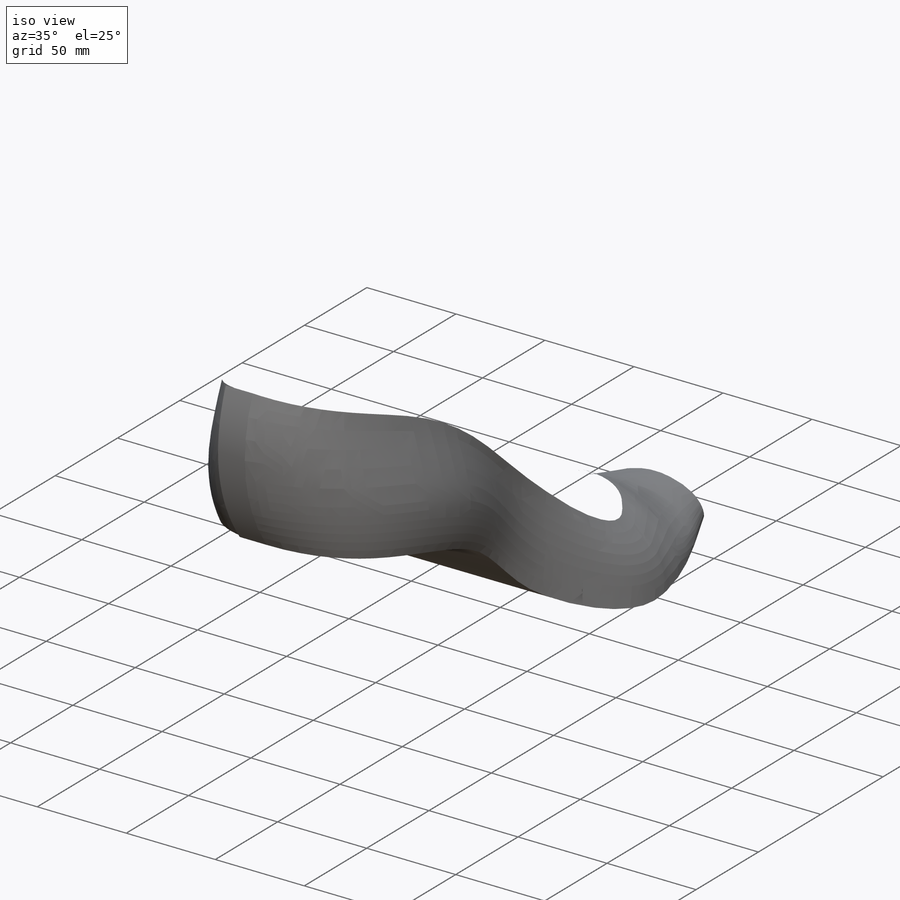
[diagram: iso view]
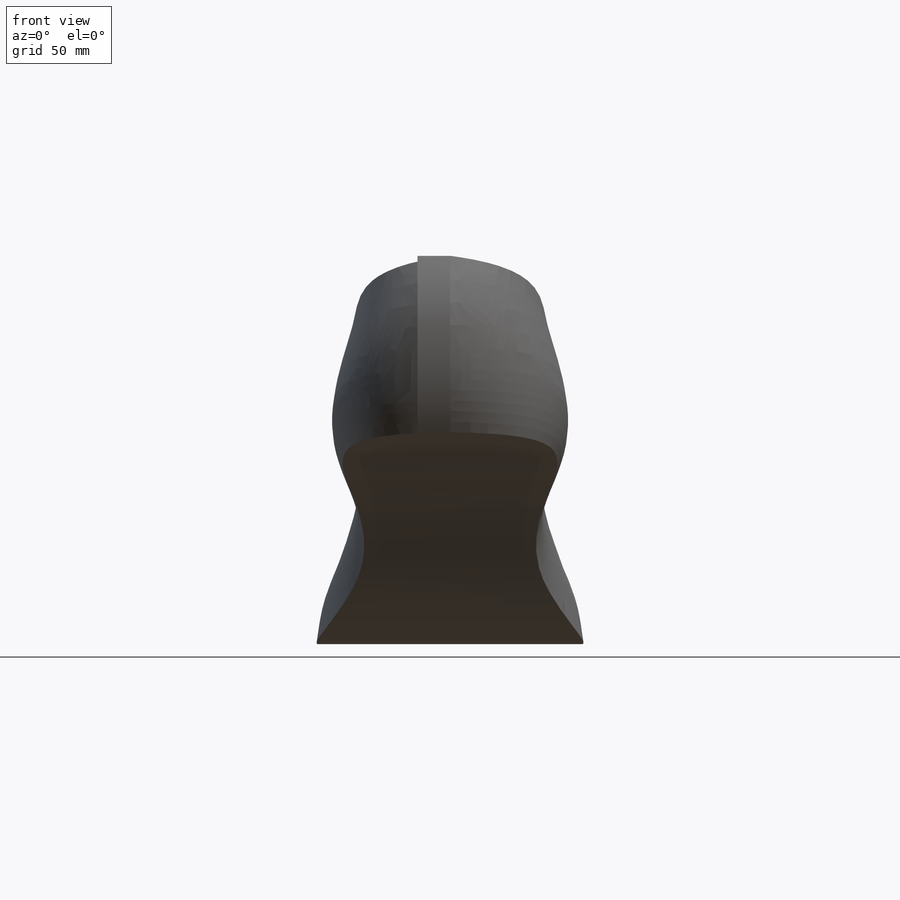
[diagram: front view]
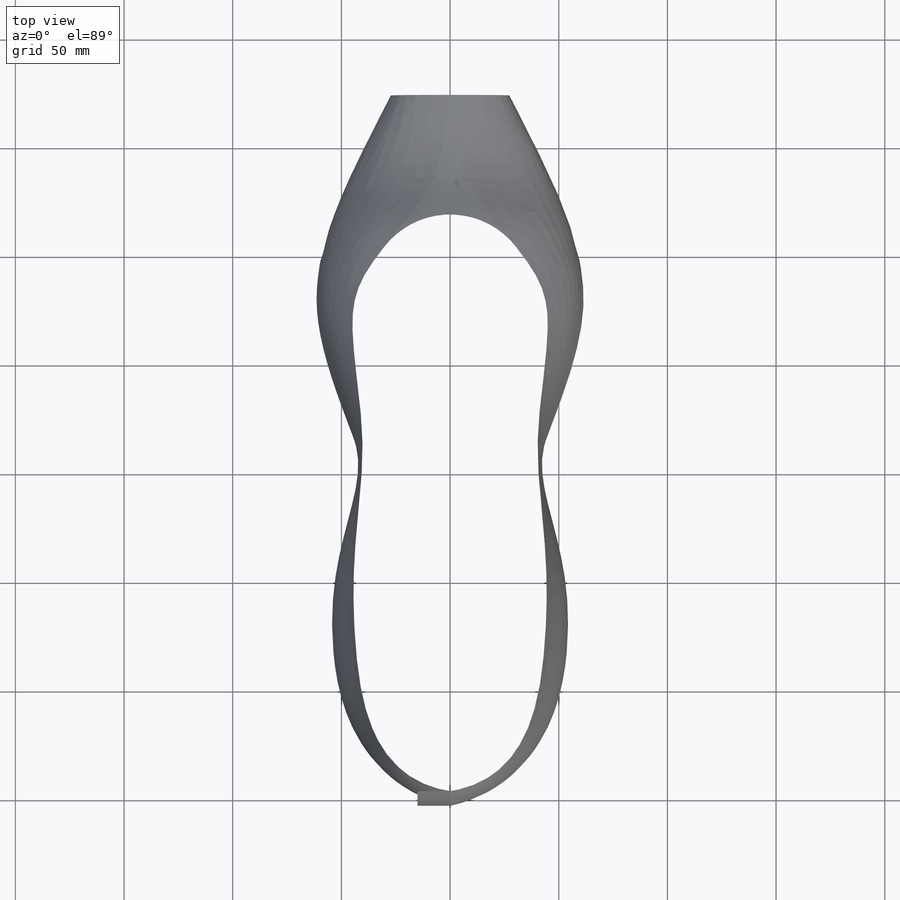
[diagram: top view]
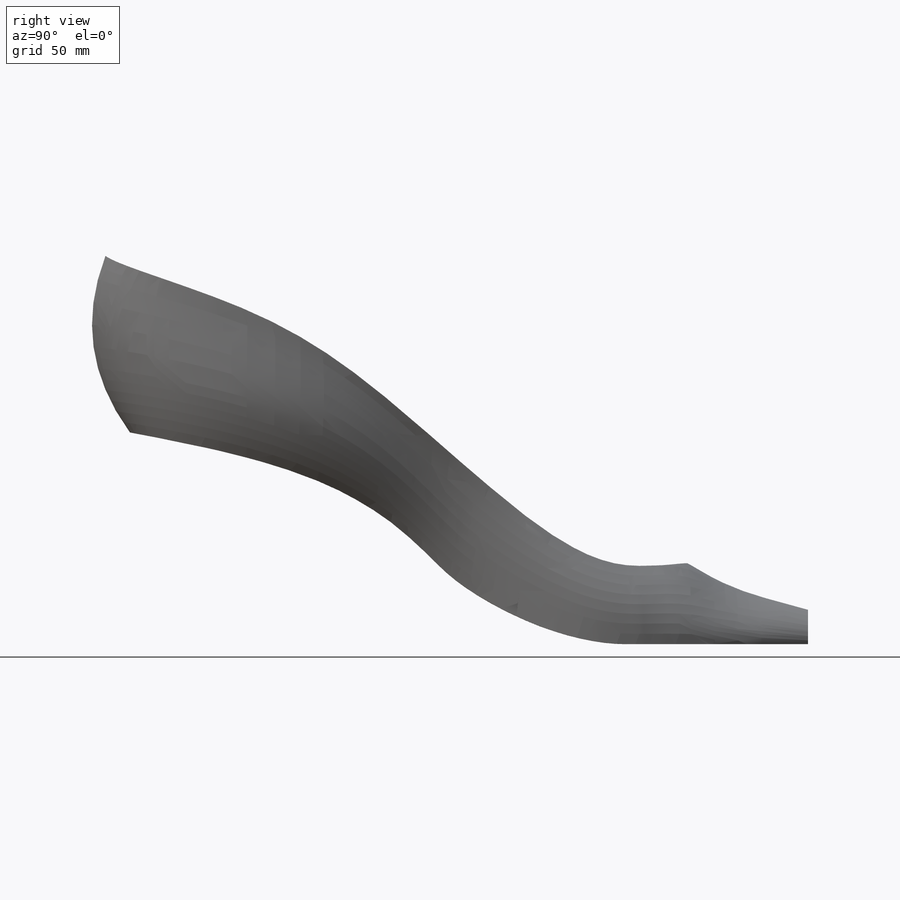
[diagram: right view]
SOLIDWORKS PART (.sldprt)
format: sldprt  version: not decoded by parser v0  size: 2,907,136 bytes
history: native  units: mm
features: sketch x12, surface_op x2, material x1, mirror x1, plane x1, fillet x1 (+17 scaffold rows collapsed)
feature tree (35):
  scaffold x17  (default folders/planes/origin — collapsed)
  material  "Material <not specified>"
  sketch  "Sketch10"
  surface_op  "Surface-Extrude3"
  sketch  "Sketch3"
  sketch  "Sketch4"
  sketch  "Sketch5"
  sketch  "Sketch7"  dims[D1=82.0959mm D2=~22.452607mm D3=~24.582597mm]
  mirror  "Mirror1"
  plane  "Plane1"
  sketch  "Sketch12"
  sketch  "Sketch14"  dims[D1=~54.594166mm D2=~2.052007mm]
  sketch  "Sketch15"
  surface_op  "Surface-Extrude4"
  sketch  "Sketch16"  dims[c1.D1=~5.886137mm c1.D2=~16.993346mm c2.D1=~40.016479mm c2.D2=~22.108234mm]
  sketch  "Sketch17"  dims[D1=~19.479585mm]
  sketch  "Sketch18"  dims[D1=~7.943022mm]
  sketch  "Sketch19"
  fillet  "Fillet1"  Radius=5mm
decode coverage: 6 of 16 modeling features carry decoded parameters
note: ~ marks probable driven/reference dimensions
note: suppression state not decoded; provenance and decode notes live in map.json
